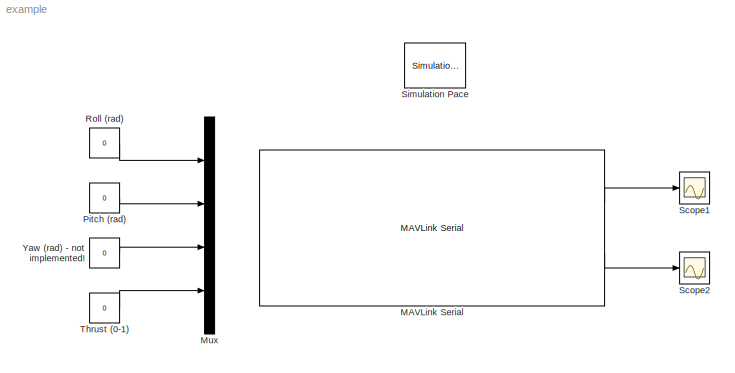
MODEL example
KIND model
BLOCK [Reference] MAVLink Serial  REF=MAVLink2Simulink_Serial/MAVLink Serial
  ATTITUDE_COMMAND = off
  ATTITUDE_IN = off
  ATTITUDE_OUT = on
  Baud_Rate = 115200
  COM_Port = 'COM4'
  DATA_STREAM = off
  GPS_RAW_IN = off
  HEART_BEAT = off
  POSITION_OUT = off
  Ports = [0, 2]
  RAW_IMU = on
  RC_SCALED = off
  SERVO_OUT_RAW = off
  SET_MODE = off
  SID = 33
  SourceBlock = MAVLink2Simulink_Serial/MAVLink Serial
  VFR_HUD = off
  VFR_HUD_IN = off
BLOCK [Mux] Mux
  DisplayOption = bar
  Ports = [4, 1]
  SID = 35
BLOCK [Constant] Pitch (rad)
  SID = 37
  Value = 0
BLOCK [Constant] Roll (rad)
  SID = 36
  Value = 0
BLOCK [Scope] Scope1
  DataFormat = StructureWithTime
  Floating = off
  NumInputPorts = 1
  Ports = [1]
  SID = 3
  SampleTime = 0
  SaveName = ScopeData1
  YMax = 0.1
  YMin = -0.1
BLOCK [Scope] Scope2
  DataFormat = StructureWithTime
  Floating = off
  NumInputPorts = 1
  Ports = [1]
  SID = 40
  SampleTime = 0
  YMax = 0.15
  YMin = -0.85
BLOCK [Reference] Simulation Pace  REF=aerolibanimutils/Simulation Pace
  AttributesFormatString = %<SimulationPace> sec/sec
  OutputPaceError = off
  Ports = []
  SID = 5
  SampleTime = 0.01
  SimulationPace = 1
  SleepMode = MATLAB Thread
  SourceBlock = aerolibanimutils/Simulation Pace
  SourceType = Simulation Pace
BLOCK [Constant] Thrust (0-1)
  SID = 39
  Value = 0
BLOCK [Constant] Yaw (rad) - not implemented!
  SID = 38
  Value = 0
LINE MAVLink Serial:1 -> Scope1:1
LINE MAVLink Serial:2 -> Scope2:1
LINE Pitch (rad):1 -> Mux:2
LINE Roll (rad):1 -> Mux:1
LINE Thrust (0-1):1 -> Mux:4
LINE Yaw (rad) - not implemented!:1 -> Mux:3
